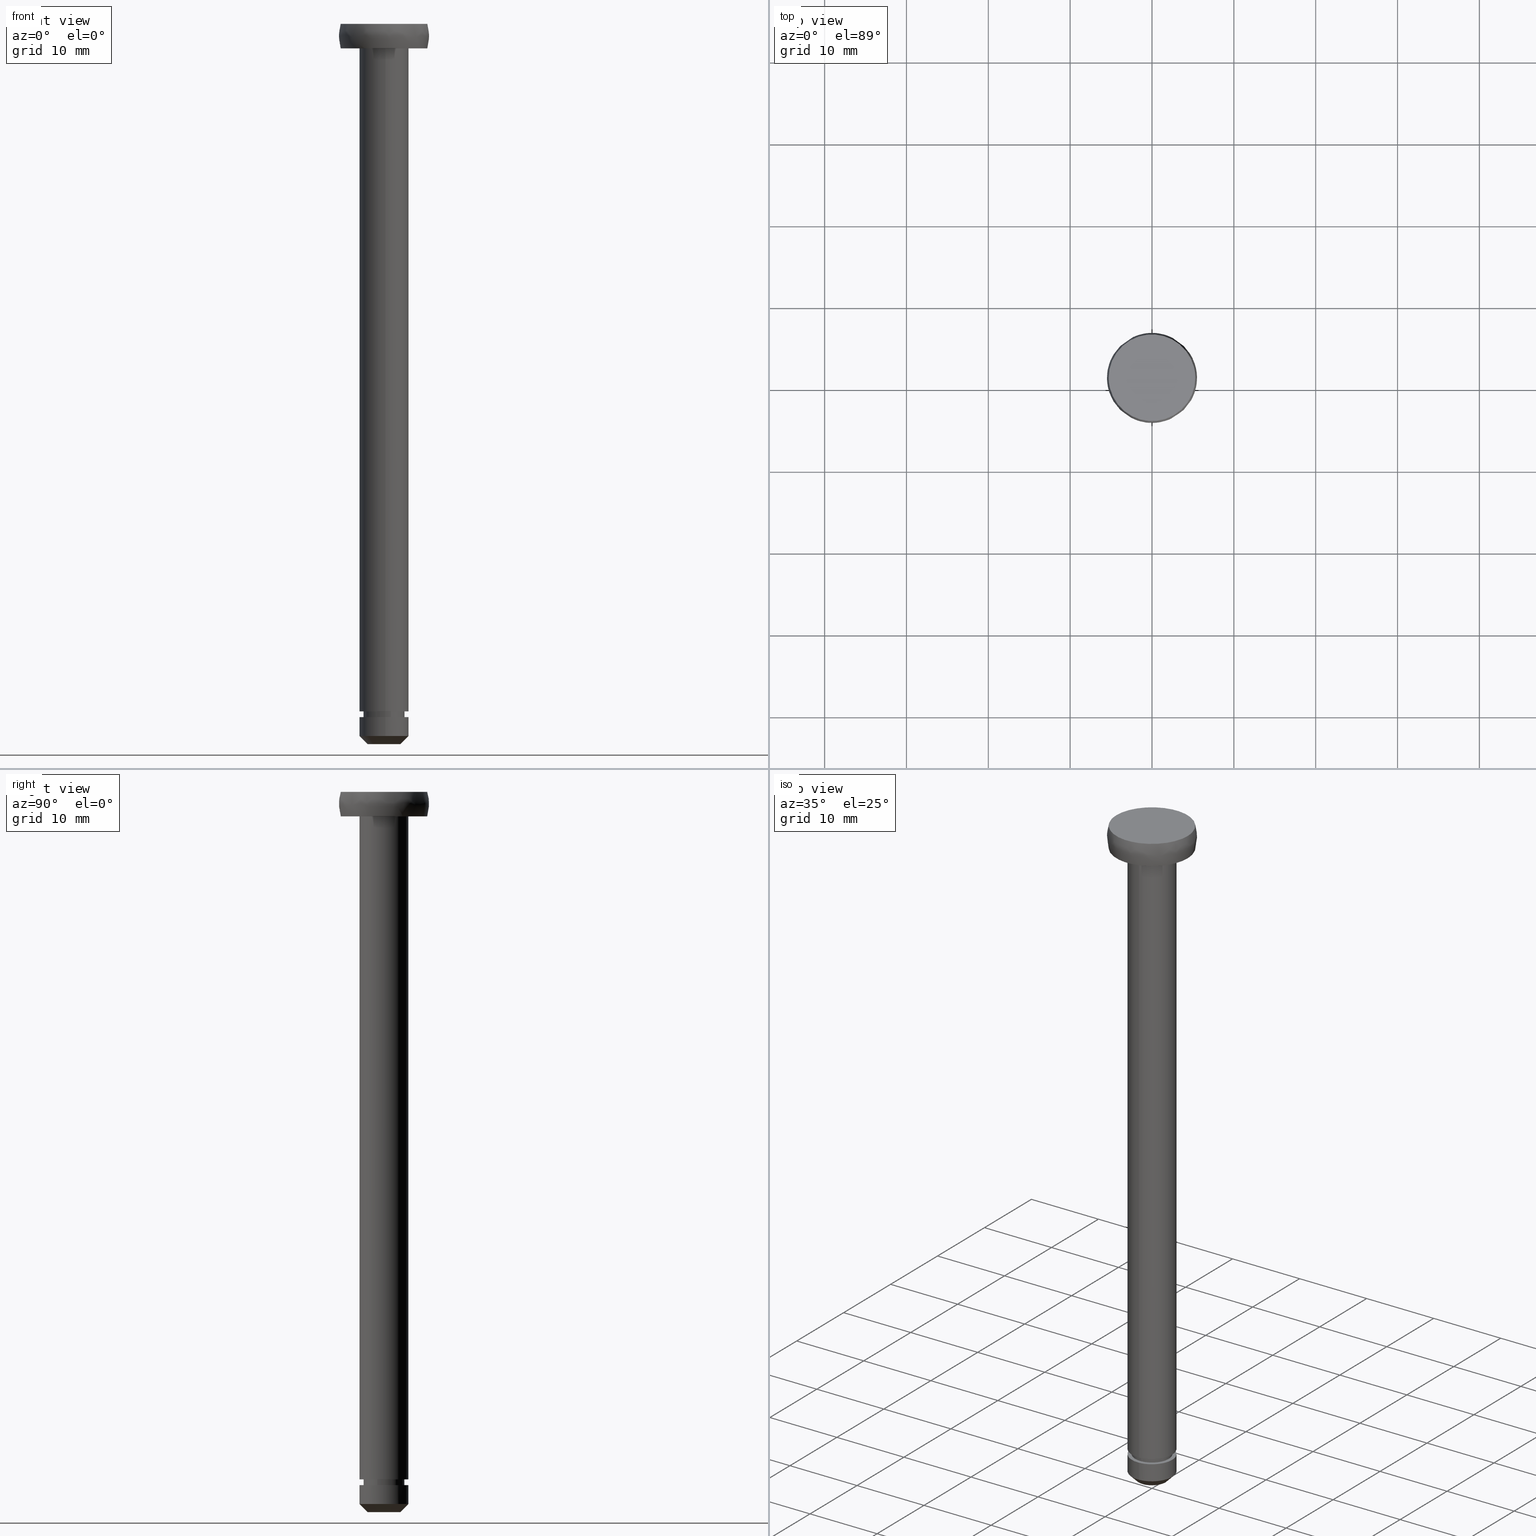
[diagram: canonical four-view strip — front | top / right | iso, engineering-drawing reading convention]
A machine part, canonical four-view strip (front | top / right | iso — engineering-drawing reading convention). The complete STEP part file that produces these views, byte-faithful:
ISO-10303-21;
HEADER;
/****************************************************************
 * Generated by software with PDE/Lib inside                    *
 * PDElib Version 4.4.1-0003, patched  Thursday August 19 11:58 *
 * International Technegroup Inc. (www.iti-oh.com)              *
 ****************************************************************/
FILE_DESCRIPTION((''),'2;1');
FILE_NAME('','2005-04-20T08:51:50',(''),(''),'','CADfix','');
FILE_SCHEMA(('AUTOMOTIVE_DESIGN'));
ENDSEC;
DATA;
#5=APPLICATION_CONTEXT('automotive design');
#6=APPLICATION_PROTOCOL_DEFINITION('Draft International Standard','automotive_design',1998,#5);
#7=PRODUCT_CONTEXT('None',#5,'mechanical');
#8=PRODUCT('shaft','','None',(#7));
#9=PRODUCT_RELATED_PRODUCT_CATEGORY('part','description',(#8));
#10=PRODUCT_DEFINITION_FORMATION('None','None',#8);
#11=PRODUCT_DEFINITION_CONTEXT('part definition',#5,'design');
#12=PRODUCT_DEFINITION('None','None',#10,#11);
#18=(NAMED_UNIT(*)PLANE_ANGLE_UNIT()SI_UNIT($,.RADIAN.));
#19=DIMENSIONAL_EXPONENTS(0.0,0.0,0.0,0.0,0.0,0.0,0.0);
#20=PLANE_ANGLE_MEASURE_WITH_UNIT(PLANE_ANGLE_MEASURE(0.017453292500000),#18);
#24=(CONVERSION_BASED_UNIT('DEGREE',#20)NAMED_UNIT(#19)PLANE_ANGLE_UNIT());
#28=(NAMED_UNIT(*)SI_UNIT($,.STERADIAN.)SOLID_ANGLE_UNIT());
#32=(LENGTH_UNIT()NAMED_UNIT(*)SI_UNIT(.MILLI.,.METRE.));
#34=UNCERTAINTY_MEASURE_WITH_UNIT(LENGTH_MEASURE(0.001000000000000),#32,'DISTANCE_ACCURACY_VALUE','');
#36=(GEOMETRIC_REPRESENTATION_CONTEXT(3)GLOBAL_UNCERTAINTY_ASSIGNED_CONTEXT((#34))GLOBAL_UNIT_ASSIGNED_CONTEXT((#24,#28,#32))REPRESENTATION_CONTEXT('None','None'));
#37=AXIS2_PLACEMENT_3D('',#38,#39,#40);
#38=CARTESIAN_POINT('',(0.0,0.0,0.0));
#39=DIRECTION('',(0.0,0.0,1.0));
#40=DIRECTION('',(1.0,0.0,0.0));
#41=ADVANCED_BREP_SHAPE_REPRESENTATION('',(#37,#952),#36);
#42=PRODUCT_DEFINITION_SHAPE('','',#12);
#43=SHAPE_DEFINITION_REPRESENTATION(#42,#41);
#44=CARTESIAN_POINT('',(-0.295085586641896,2.482523815909166,4.017499925000000));
#45=CARTESIAN_POINT('',(-0.224036821594944,2.490969038621514,4.017499925000000));
#46=CARTESIAN_POINT('',(-0.152621348837143,2.495336996054667,4.017499925000000));
#47=CARTESIAN_POINT('',(2.342715647217524,2.647958344891809,4.017499925000001));
#48=CARTESIAN_POINT('',(2.495336996054667,0.152621348837143,4.017499925000000));
#49=CARTESIAN_POINT('',(2.647958344891809,-2.342715647217524,4.017499925000001));
#50=CARTESIAN_POINT('',(0.152621348837143,-2.495336996054667,4.017499925000000));
#51=CARTESIAN_POINT('',(-0.295085586641896,2.482523815909166,3.282065576875000));
#52=CARTESIAN_POINT('',(-0.224036821594944,2.490969038621514,3.282065576875000));
#53=CARTESIAN_POINT('',(-0.152621348837143,2.495336996054667,3.282065576875000));
#54=CARTESIAN_POINT('',(2.342715647217524,2.647958344891809,3.282065576874999));
#55=CARTESIAN_POINT('',(2.495336996054667,0.152621348837143,3.282065576875000));
#56=CARTESIAN_POINT('',(2.647958344891809,-2.342715647217524,3.282065576874999));
#57=CARTESIAN_POINT('',(0.152621348837143,-2.495336996054667,3.282065576875000));
#65=(BOUNDED_SURFACE()B_SPLINE_SURFACE(2,1,((#44,#51),(#45,#52),(#46,#53),(#47,#54),(#48,#55),(#49,#56),(#50,#57)),.UNSPECIFIED.,.F.,.F.,.U.)B_SPLINE_SURFACE_WITH_KNOTS((3,2,2,3),(2,2),(0.0,0.165685424949238,4.307821048680188,8.449956672411137),(0.0,1.0),.UNSPECIFIED.)GEOMETRIC_REPRESENTATION_ITEM()RATIONAL_B_SPLINE_SURFACE(((0.977505800795127,0.977505800795127),(0.988284271247462,0.988284271247462),(1.0,1.0),(0.707106781186548,0.707106781186548),(1.0,1.0),(0.707106781186548,0.707106781186548),(1.0,1.0)))REPRESENTATION_ITEM('')SURFACE());
#66=CARTESIAN_POINT('',(-0.295085586881398,2.482523815880697,4.0));
#67=VERTEX_POINT('',#66);
#68=CARTESIAN_POINT('',(2.500000000000000,0.0,4.0));
#69=VERTEX_POINT('',#68);
#70=CARTESIAN_POINT('',(-0.295085586881398,2.482523815880696,4.0));
#71=CARTESIAN_POINT('',(-0.148060299371810,2.500000000000000,4.0));
#72=CARTESIAN_POINT('',(0.0,2.500000000000000,4.0));
#73=CARTESIAN_POINT('',(2.500000000000000,2.500000000000000,4.000000000000000));
#74=CARTESIAN_POINT('',(2.500000000000000,0.0,4.0));
#82=(BOUNDED_CURVE()B_SPLINE_CURVE(2,(#70,#71,#72,#73,#74),.UNSPECIFIED.,.F.,.U.)B_SPLINE_CURVE_WITH_KNOTS((3,2,3),(0.229562473483035,0.250000000000000,0.500000000000000),.UNSPECIFIED.)CURVE()GEOMETRIC_REPRESENTATION_ITEM()RATIONAL_B_SPLINE_CURVE((0.956026754123970,0.976055948295443,1.0,0.707106781186548,1.0))REPRESENTATION_ITEM(''));
#83=EDGE_CURVE('',#67,#69,#82,.T.);
#84=ORIENTED_EDGE('',*,*,#83,.T.);
#85=CARTESIAN_POINT('',(0.152621348861238,-2.495336996053194,4.0));
#86=VERTEX_POINT('',#85);
#87=CARTESIAN_POINT('',(2.500000000000000,0.0,4.0));
#88=CARTESIAN_POINT('',(2.500000000000000,-2.351765167218741,4.0));
#89=CARTESIAN_POINT('',(0.152621348861238,-2.495336996053194,4.000000000000001));
#97=(BOUNDED_CURVE()B_SPLINE_CURVE(2,(#87,#88,#89),.UNSPECIFIED.,.F.,.U.)B_SPLINE_CURVE_WITH_KNOTS((3,3),(0.500000000000000,0.739332962238636),.UNSPECIFIED.)CURVE()GEOMETRIC_REPRESENTATION_ITEM()RATIONAL_B_SPLINE_CURVE((1.0,0.719603993287069,0.976072041666061))REPRESENTATION_ITEM(''));
#98=EDGE_CURVE('',#69,#86,#97,.T.);
#99=ORIENTED_EDGE('',*,*,#98,.T.);
#100=CARTESIAN_POINT('',(0.152621348861239,-2.495336996053193,3.300003000000000));
#101=VERTEX_POINT('',#100);
#102=CARTESIAN_POINT('',(0.152621348861238,-2.495336996053194,4.0));
#103=CARTESIAN_POINT('',(0.152621348861239,-2.495336996053193,3.300003000000000));
#104=QUASI_UNIFORM_CURVE('',1,(#102,#103),.UNSPECIFIED.,.F.,.U.);
#105=EDGE_CURVE('',#86,#101,#104,.T.);
#106=ORIENTED_EDGE('',*,*,#105,.T.);
#107=CARTESIAN_POINT('',(2.500000000000000,0.0,3.300003000000000));
#108=VERTEX_POINT('',#107);
#109=CARTESIAN_POINT('',(2.500000000000000,0.0,3.300003000000000));
#110=CARTESIAN_POINT('',(2.500000000000000,-2.351765167218741,3.300003000000001));
#111=CARTESIAN_POINT('',(0.152621348861239,-2.495336996053194,3.300003000000000));
#119=(BOUNDED_CURVE()B_SPLINE_CURVE(2,(#109,#110,#111),.UNSPECIFIED.,.F.,.U.)B_SPLINE_CURVE_WITH_KNOTS((3,3),(0.500000000000000,0.739332962238636),.UNSPECIFIED.)CURVE()GEOMETRIC_REPRESENTATION_ITEM()RATIONAL_B_SPLINE_CURVE((1.0,0.719603993287069,0.976072041666061))REPRESENTATION_ITEM(''));
#120=EDGE_CURVE('',#108,#101,#119,.T.);
#121=ORIENTED_EDGE('',*,*,#120,.F.);
#122=CARTESIAN_POINT('',(-0.295085586881398,2.482523815880697,3.300003000000000));
#123=VERTEX_POINT('',#122);
#124=CARTESIAN_POINT('',(-0.295085586881398,2.482523815880696,3.300003000000000));
#125=CARTESIAN_POINT('',(-0.148060299371810,2.500000000000000,3.300003000000000));
#126=CARTESIAN_POINT('',(0.0,2.500000000000000,3.300003000000000));
#127=CARTESIAN_POINT('',(2.500000000000000,2.500000000000000,3.300003000000001));
#128=CARTESIAN_POINT('',(2.500000000000000,0.0,3.300003000000000));
#136=(BOUNDED_CURVE()B_SPLINE_CURVE(2,(#124,#125,#126,#127,#128),.UNSPECIFIED.,.F.,.U.)B_SPLINE_CURVE_WITH_KNOTS((3,2,3),(0.229562473483035,0.250000000000000,0.500000000000000),.UNSPECIFIED.)CURVE()GEOMETRIC_REPRESENTATION_ITEM()RATIONAL_B_SPLINE_CURVE((0.956026754123970,0.976055948295443,1.0,0.707106781186548,1.0))REPRESENTATION_ITEM(''));
#137=EDGE_CURVE('',#123,#108,#136,.T.);
#138=ORIENTED_EDGE('',*,*,#137,.F.);
#139=CARTESIAN_POINT('',(-0.295085586881398,2.482523815880697,4.0));
#140=CARTESIAN_POINT('',(-0.295085586881398,2.482523815880697,3.300003000000000));
#141=QUASI_UNIFORM_CURVE('',1,(#139,#140),.UNSPECIFIED.,.F.,.U.);
#142=EDGE_CURVE('',#67,#123,#141,.T.);
#143=ORIENTED_EDGE('',*,*,#142,.F.);
#144=EDGE_LOOP('',(#84,#99,#106,#121,#138,#143));
#145=FACE_OUTER_BOUND('',#144,.T.);
#146=ADVANCED_FACE('',(#145),#65,.T.);
#147=CARTESIAN_POINT('',(0.152621348837143,-2.495336996054667,4.017499925000000));
#148=CARTESIAN_POINT('',(-2.342715647217524,-2.647958344891809,4.017499925000001));
#149=CARTESIAN_POINT('',(-2.495336996054667,-0.152621348837143,4.017499925000000));
#150=CARTESIAN_POINT('',(-2.639465491831319,2.203858727098751,4.017499925000000));
#151=CARTESIAN_POINT('',(-0.295085586641896,2.482523815909166,4.017499925000000));
#152=CARTESIAN_POINT('',(0.152621348837143,-2.495336996054667,3.282065576875000));
#153=CARTESIAN_POINT('',(-2.342715647217524,-2.647958344891809,3.282065576874999));
#154=CARTESIAN_POINT('',(-2.495336996054667,-0.152621348837143,3.282065576875000));
#155=CARTESIAN_POINT('',(-2.639465491831319,2.203858727098751,3.282065576874999));
#156=CARTESIAN_POINT('',(-0.295085586641896,2.482523815909166,3.282065576875000));
#164=(BOUNDED_SURFACE()B_SPLINE_SURFACE(2,1,((#147,#152),(#148,#153),(#149,#154),(#150,#155),(#151,#156)),.UNSPECIFIED.,.F.,.F.,.U.)B_SPLINE_SURFACE_WITH_KNOTS((3,2,3),(2,2),(0.0,4.142135623730949,8.118585822512660),(0.0,1.0),.UNSPECIFIED.)GEOMETRIC_REPRESENTATION_ITEM()RATIONAL_B_SPLINE_SURFACE(((1.0,1.0),(0.707106781186548,0.707106781186548),(1.0,1.0),(0.718822509939086,0.718822509939086),(0.977505800795127,0.977505800795127)))REPRESENTATION_ITEM('')SURFACE());
#165=CARTESIAN_POINT('',(-2.500000000000000,0.0,4.0));
#166=VERTEX_POINT('',#165);
#167=CARTESIAN_POINT('',(-2.500000000000000,0.0,4.0));
#168=CARTESIAN_POINT('',(-2.500000000000000,2.220436314446967,4.000000000000001));
#169=CARTESIAN_POINT('',(-0.295085586881398,2.482523815880697,4.0));
#177=(BOUNDED_CURVE()B_SPLINE_CURVE(2,(#167,#168,#169),.UNSPECIFIED.,.F.,.U.)B_SPLINE_CURVE_WITH_KNOTS((3,3),(0.0,0.229562473483035),.UNSPECIFIED.)CURVE()GEOMETRIC_REPRESENTATION_ITEM()RATIONAL_B_SPLINE_CURVE((1.0,0.731050832891104,0.956026754123970))REPRESENTATION_ITEM(''));
#178=EDGE_CURVE('',#166,#67,#177,.T.);
#179=ORIENTED_EDGE('',*,*,#178,.T.);
#180=ORIENTED_EDGE('',*,*,#142,.T.);
#181=CARTESIAN_POINT('',(-2.500000000000000,0.0,3.300003000000000));
#182=VERTEX_POINT('',#181);
#183=CARTESIAN_POINT('',(-2.500000000000000,0.0,3.300003000000000));
#184=CARTESIAN_POINT('',(-2.500000000000000,2.220436314446967,3.300003000000001));
#185=CARTESIAN_POINT('',(-0.295085586881398,2.482523815880697,3.300003000000000));
#193=(BOUNDED_CURVE()B_SPLINE_CURVE(2,(#183,#184,#185),.UNSPECIFIED.,.F.,.U.)B_SPLINE_CURVE_WITH_KNOTS((3,3),(0.0,0.229562473483035),.UNSPECIFIED.)CURVE()GEOMETRIC_REPRESENTATION_ITEM()RATIONAL_B_SPLINE_CURVE((1.0,0.731050832891104,0.956026754123970))REPRESENTATION_ITEM(''));
#194=EDGE_CURVE('',#182,#123,#193,.T.);
#195=ORIENTED_EDGE('',*,*,#194,.F.);
#196=CARTESIAN_POINT('',(0.152621348861239,-2.495336996053193,3.300003000000000));
#197=CARTESIAN_POINT('',(0.076381908270636,-2.500000000000000,3.300003000000000));
#198=CARTESIAN_POINT('',(0.0,-2.500000000000000,3.300003000000000));
#199=CARTESIAN_POINT('',(-2.500000000000000,-2.500000000000000,3.300003000000001));
#200=CARTESIAN_POINT('',(-2.500000000000000,0.0,3.300003000000000));
#208=(BOUNDED_CURVE()B_SPLINE_CURVE(2,(#196,#197,#198,#199,#200),.UNSPECIFIED.,.F.,.U.)B_SPLINE_CURVE_WITH_KNOTS((3,2,3),(0.739332962238636,0.750000000000000,1.0),.UNSPECIFIED.)CURVE()GEOMETRIC_REPRESENTATION_ITEM()RATIONAL_B_SPLINE_CURVE((0.976072041666060,0.987502787899478,1.0,0.707106781186548,1.0))REPRESENTATION_ITEM(''));
#209=EDGE_CURVE('',#101,#182,#208,.T.);
#210=ORIENTED_EDGE('',*,*,#209,.F.);
#211=ORIENTED_EDGE('',*,*,#105,.F.);
#212=CARTESIAN_POINT('',(0.152621348861238,-2.495336996053194,4.0));
#213=CARTESIAN_POINT('',(0.076381908270635,-2.500000000000001,4.0));
#214=CARTESIAN_POINT('',(0.0,-2.500000000000000,4.0));
#215=CARTESIAN_POINT('',(-2.500000000000000,-2.500000000000000,4.000000000000000));
#216=CARTESIAN_POINT('',(-2.500000000000000,0.0,4.0));
#224=(BOUNDED_CURVE()B_SPLINE_CURVE(2,(#212,#213,#214,#215,#216),.UNSPECIFIED.,.F.,.U.)B_SPLINE_CURVE_WITH_KNOTS((3,2,3),(0.739332962238636,0.750000000000000,1.0),.UNSPECIFIED.)CURVE()GEOMETRIC_REPRESENTATION_ITEM()RATIONAL_B_SPLINE_CURVE((0.976072041666060,0.987502787899478,1.0,0.707106781186548,1.0))REPRESENTATION_ITEM(''));
#225=EDGE_CURVE('',#86,#166,#224,.T.);
#226=ORIENTED_EDGE('',*,*,#225,.T.);
#227=EDGE_LOOP('',(#179,#180,#195,#210,#211,#226));
#228=FACE_OUTER_BOUND('',#227,.T.);
#229=ADVANCED_FACE('',(#228),#164,.T.);
#230=CARTESIAN_POINT('',(-0.354102703970275,2.979028579091000,87.025008200000045));
#231=CARTESIAN_POINT('',(-0.268844185913933,2.989162846345817,87.025008200000030));
#232=CARTESIAN_POINT('',(-0.183145618604571,2.994404395265600,87.025008200000030));
#233=CARTESIAN_POINT('',(2.811258776661029,3.177550013870171,87.025008200000030));
#234=CARTESIAN_POINT('',(2.994404395265600,0.183145618604571,87.025008200000030));
#235=CARTESIAN_POINT('',(3.177550013870171,-2.811258776661029,87.025008200000030));
#236=CARTESIAN_POINT('',(0.183145618604571,-2.994404395265600,87.025008200000030));
#237=CARTESIAN_POINT('',(-0.354102703970275,2.979028579091000,1.924374795000006));
#238=CARTESIAN_POINT('',(-0.268844185913933,2.989162846345817,1.924374795000006));
#239=CARTESIAN_POINT('',(-0.183145618604571,2.994404395265600,1.924374795000006));
#240=CARTESIAN_POINT('',(2.811258776661029,3.177550013870171,1.924374795000005));
#241=CARTESIAN_POINT('',(2.994404395265600,0.183145618604571,1.924374795000006));
#242=CARTESIAN_POINT('',(3.177550013870171,-2.811258776661029,1.924374795000005));
#243=CARTESIAN_POINT('',(0.183145618604571,-2.994404395265600,1.924374795000006));
#251=(BOUNDED_SURFACE()B_SPLINE_SURFACE(2,1,((#230,#237),(#231,#238),(#232,#239),(#233,#240),(#234,#241),(#235,#242),(#236,#243)),.UNSPECIFIED.,.F.,.F.,.U.)B_SPLINE_SURFACE_WITH_KNOTS((3,2,2,3),(2,2),(0.0,0.198822509939086,5.169385258416225,10.139948006893370),(0.0,85.100633405000039),.UNSPECIFIED.)GEOMETRIC_REPRESENTATION_ITEM()RATIONAL_B_SPLINE_SURFACE(((0.977505800795127,0.977505800795127),(0.988284271247462,0.988284271247462),(1.0,1.0),(0.707106781186548,0.707106781186548),(1.0,1.0),(0.707106781186548,0.707106781186548),(1.0,1.0)))REPRESENTATION_ITEM('')SURFACE());
#252=CARTESIAN_POINT('',(-0.354102703992168,2.979028579088397,3.999999999999999));
#253=VERTEX_POINT('',#252);
#254=CARTESIAN_POINT('',(3.0,0.0,4.0));
#255=VERTEX_POINT('',#254);
#256=CARTESIAN_POINT('',(-0.354102703992168,2.979028579088397,3.999999999999999));
#257=CARTESIAN_POINT('',(-0.177672358977854,3.0,4.0));
#258=CARTESIAN_POINT('',(0.0,3.0,4.0));
#259=CARTESIAN_POINT('',(3.0,3.0,4.000000000000000));
#260=CARTESIAN_POINT('',(3.0,0.0,4.0));
#268=(BOUNDED_CURVE()B_SPLINE_CURVE(2,(#256,#257,#258,#259,#260),.UNSPECIFIED.,.F.,.U.)B_SPLINE_CURVE_WITH_KNOTS((3,2,3),(0.229562473513160,0.250000000000000,0.500000000000000),.UNSPECIFIED.)CURVE()GEOMETRIC_REPRESENTATION_ITEM()RATIONAL_B_SPLINE_CURVE((0.956026754183017,0.976055948330737,1.0,0.707106781186548,1.0))REPRESENTATION_ITEM(''));
#269=EDGE_CURVE('',#253,#255,#268,.T.);
#270=ORIENTED_EDGE('',*,*,#269,.F.);
#271=CARTESIAN_POINT('',(-0.354102703992168,2.979028579088397,85.000008000000008));
#272=VERTEX_POINT('',#271);
#273=CARTESIAN_POINT('',(-0.354102703992168,2.979028579088397,85.000008000000008));
#274=CARTESIAN_POINT('',(-0.354102703992168,2.979028579088397,3.999999999999999));
#275=QUASI_UNIFORM_CURVE('',1,(#273,#274),.UNSPECIFIED.,.F.,.U.);
#276=EDGE_CURVE('',#272,#253,#275,.T.);
#277=ORIENTED_EDGE('',*,*,#276,.F.);
#278=CARTESIAN_POINT('',(3.0,0.0,85.000008000000008));
#279=VERTEX_POINT('',#278);
#280=CARTESIAN_POINT('',(-0.354102703992168,2.979028579088397,85.000008000000008));
#281=CARTESIAN_POINT('',(-0.177672358977854,3.0,85.000008000000008));
#282=CARTESIAN_POINT('',(0.0,3.0,85.000008000000008));
#283=CARTESIAN_POINT('',(3.0,3.0,85.000008000000008));
#284=CARTESIAN_POINT('',(3.0,0.0,85.000008000000008));
#292=(BOUNDED_CURVE()B_SPLINE_CURVE(2,(#280,#281,#282,#283,#284),.UNSPECIFIED.,.F.,.U.)B_SPLINE_CURVE_WITH_KNOTS((3,2,3),(0.229562473513160,0.250000000000000,0.500000000000000),.UNSPECIFIED.)CURVE()GEOMETRIC_REPRESENTATION_ITEM()RATIONAL_B_SPLINE_CURVE((0.956026754183017,0.976055948330737,1.0,0.707106781186548,1.0))REPRESENTATION_ITEM(''));
#293=EDGE_CURVE('',#272,#279,#292,.T.);
#294=ORIENTED_EDGE('',*,*,#293,.T.);
#295=CARTESIAN_POINT('',(0.183145618696712,-2.994404395259965,85.000008000000008));
#296=VERTEX_POINT('',#295);
#297=CARTESIAN_POINT('',(3.0,0.0,85.000008000000008));
#298=CARTESIAN_POINT('',(3.000000000000001,-2.822118200543074,85.000008000000008));
#299=CARTESIAN_POINT('',(0.183145618696712,-2.994404395259965,85.000008000000008));
#307=(BOUNDED_CURVE()B_SPLINE_CURVE(2,(#297,#298,#299),.UNSPECIFIED.,.F.,.U.)B_SPLINE_CURVE_WITH_KNOTS((3,3),(0.500000000000000,0.739332962231349),.UNSPECIFIED.)CURVE()GEOMETRIC_REPRESENTATION_ITEM()RATIONAL_B_SPLINE_CURVE((1.0,0.719603993295607,0.976072041650442))REPRESENTATION_ITEM(''));
#308=EDGE_CURVE('',#279,#296,#307,.T.);
#309=ORIENTED_EDGE('',*,*,#308,.T.);
#310=CARTESIAN_POINT('',(0.183145618696712,-2.994404395259965,3.999999999999999));
#311=VERTEX_POINT('',#310);
#312=CARTESIAN_POINT('',(0.183145618696712,-2.994404395259965,85.000008000000008));
#313=CARTESIAN_POINT('',(0.183145618696712,-2.994404395259965,3.999999999999999));
#314=QUASI_UNIFORM_CURVE('',1,(#312,#313),.UNSPECIFIED.,.F.,.U.);
#315=EDGE_CURVE('',#296,#311,#314,.T.);
#316=ORIENTED_EDGE('',*,*,#315,.T.);
#317=CARTESIAN_POINT('',(3.0,0.0,4.0));
#318=CARTESIAN_POINT('',(3.000000000000001,-2.822118200543074,4.000000000000000));
#319=CARTESIAN_POINT('',(0.183145618696712,-2.994404395259965,3.999999999999999));
#327=(BOUNDED_CURVE()B_SPLINE_CURVE(2,(#317,#318,#319),.UNSPECIFIED.,.F.,.U.)B_SPLINE_CURVE_WITH_KNOTS((3,3),(0.500000000000000,0.739332962231349),.UNSPECIFIED.)CURVE()GEOMETRIC_REPRESENTATION_ITEM()RATIONAL_B_SPLINE_CURVE((1.0,0.719603993295607,0.976072041650442))REPRESENTATION_ITEM(''));
#328=EDGE_CURVE('',#255,#311,#327,.T.);
#329=ORIENTED_EDGE('',*,*,#328,.F.);
#330=EDGE_LOOP('',(#270,#277,#294,#309,#316,#329));
#331=FACE_OUTER_BOUND('',#330,.T.);
#332=ADVANCED_FACE('',(#331),#251,.T.);
#333=CARTESIAN_POINT('',(0.183145618604571,-2.994404395265600,87.025008200000030));
#334=CARTESIAN_POINT('',(-2.811258776661029,-3.177550013870171,87.025008200000030));
#335=CARTESIAN_POINT('',(-2.994404395265600,-0.183145618604571,87.025008200000030));
#336=CARTESIAN_POINT('',(-3.167358590197582,2.644630472518504,87.025008200000045));
#337=CARTESIAN_POINT('',(-0.354102703970275,2.979028579091000,87.025008200000045));
#338=CARTESIAN_POINT('',(0.183145618604571,-2.994404395265600,1.924374795000006));
#339=CARTESIAN_POINT('',(-2.811258776661029,-3.177550013870171,1.924374795000005));
#340=CARTESIAN_POINT('',(-2.994404395265600,-0.183145618604571,1.924374795000006));
#341=CARTESIAN_POINT('',(-3.167358590197582,2.644630472518504,1.924374795000006));
#342=CARTESIAN_POINT('',(-0.354102703970275,2.979028579091000,1.924374795000006));
#350=(BOUNDED_SURFACE()B_SPLINE_SURFACE(2,1,((#333,#338),(#334,#339),(#335,#340),(#336,#341),(#337,#342)),.UNSPECIFIED.,.F.,.F.,.U.)B_SPLINE_SURFACE_WITH_KNOTS((3,2,3),(2,2),(0.0,4.970562748477139,9.742302987015194),(0.0,85.100633405000039),.UNSPECIFIED.)GEOMETRIC_REPRESENTATION_ITEM()RATIONAL_B_SPLINE_SURFACE(((1.0,1.0),(0.707106781186548,0.707106781186548),(1.0,1.0),(0.718822509939086,0.718822509939086),(0.977505800795127,0.977505800795127)))REPRESENTATION_ITEM('')SURFACE());
#351=CARTESIAN_POINT('',(-3.0,0.0,4.0));
#352=VERTEX_POINT('',#351);
#353=CARTESIAN_POINT('',(-3.0,0.0,4.0));
#354=CARTESIAN_POINT('',(-3.000000000000000,2.664523577814664,4.000000000000001));
#355=CARTESIAN_POINT('',(-0.354102703992168,2.979028579088397,3.999999999999999));
#363=(BOUNDED_CURVE()B_SPLINE_CURVE(2,(#353,#354,#355),.UNSPECIFIED.,.F.,.U.)B_SPLINE_CURVE_WITH_KNOTS((3,3),(0.0,0.229562473513160),.UNSPECIFIED.)CURVE()GEOMETRIC_REPRESENTATION_ITEM()RATIONAL_B_SPLINE_CURVE((1.0,0.731050832855810,0.956026754183017))REPRESENTATION_ITEM(''));
#364=EDGE_CURVE('',#352,#253,#363,.T.);
#365=ORIENTED_EDGE('',*,*,#364,.F.);
#366=CARTESIAN_POINT('',(0.183145618696712,-2.994404395259965,4.000000000000000));
#367=CARTESIAN_POINT('',(0.091658289988166,-3.0,4.0));
#368=CARTESIAN_POINT('',(0.0,-3.0,4.0));
#369=CARTESIAN_POINT('',(-3.0,-3.0,4.000000000000000));
#370=CARTESIAN_POINT('',(-3.0,0.0,4.0));
#378=(BOUNDED_CURVE()B_SPLINE_CURVE(2,(#366,#367,#368,#369,#370),.UNSPECIFIED.,.F.,.U.)B_SPLINE_CURVE_WITH_KNOTS((3,2,3),(0.739332962231349,0.750000000000000,1.0),.UNSPECIFIED.)CURVE()GEOMETRIC_REPRESENTATION_ITEM()RATIONAL_B_SPLINE_CURVE((0.976072041650443,0.987502787890941,1.0,0.707106781186548,1.0))REPRESENTATION_ITEM(''));
#379=EDGE_CURVE('',#311,#352,#378,.T.);
#380=ORIENTED_EDGE('',*,*,#379,.F.);
#381=ORIENTED_EDGE('',*,*,#315,.F.);
#382=CARTESIAN_POINT('',(-3.0,0.0,85.000008000000008));
#383=VERTEX_POINT('',#382);
#384=CARTESIAN_POINT('',(0.183145618696712,-2.994404395259965,85.000008000000008));
#385=CARTESIAN_POINT('',(0.091658289988166,-3.0,85.000008000000008));
#386=CARTESIAN_POINT('',(0.0,-3.0,85.000008000000008));
#387=CARTESIAN_POINT('',(-3.0,-3.0,85.000008000000008));
#388=CARTESIAN_POINT('',(-3.0,0.0,85.000008000000008));
#396=(BOUNDED_CURVE()B_SPLINE_CURVE(2,(#384,#385,#386,#387,#388),.UNSPECIFIED.,.F.,.U.)B_SPLINE_CURVE_WITH_KNOTS((3,2,3),(0.739332962231349,0.750000000000000,1.0),.UNSPECIFIED.)CURVE()GEOMETRIC_REPRESENTATION_ITEM()RATIONAL_B_SPLINE_CURVE((0.976072041650443,0.987502787890941,1.0,0.707106781186548,1.0))REPRESENTATION_ITEM(''));
#397=EDGE_CURVE('',#296,#383,#396,.T.);
#398=ORIENTED_EDGE('',*,*,#397,.T.);
#399=CARTESIAN_POINT('',(-3.0,0.0,85.000008000000008));
#400=CARTESIAN_POINT('',(-3.000000000000000,2.664523577814664,85.000007999999994));
#401=CARTESIAN_POINT('',(-0.354102703992168,2.979028579088397,85.000008000000008));
#409=(BOUNDED_CURVE()B_SPLINE_CURVE(2,(#399,#400,#401),.UNSPECIFIED.,.F.,.U.)B_SPLINE_CURVE_WITH_KNOTS((3,3),(0.0,0.229562473513160),.UNSPECIFIED.)CURVE()GEOMETRIC_REPRESENTATION_ITEM()RATIONAL_B_SPLINE_CURVE((1.0,0.731050832855810,0.956026754183017))REPRESENTATION_ITEM(''));
#410=EDGE_CURVE('',#383,#272,#409,.T.);
#411=ORIENTED_EDGE('',*,*,#410,.T.);
#412=ORIENTED_EDGE('',*,*,#276,.T.);
#413=EDGE_LOOP('',(#365,#380,#381,#398,#411,#412));
#414=FACE_OUTER_BOUND('',#413,.T.);
#415=ADVANCED_FACE('',(#414),#350,.T.);
#416=CARTESIAN_POINT('',(1.665004096507187,1.062255317056252,-0.025000000000000));
#417=CARTESIAN_POINT('',(1.027209143203780,2.061950204839571,-0.025000000000000));
#418=CARTESIAN_POINT('',(-0.154956714062495,1.968911734122927,-0.025000000000000));
#419=CARTESIAN_POINT('',(-2.123868448185422,1.813955020060431,-0.025000000000000));
#420=CARTESIAN_POINT('',(-1.968911734122927,-0.154956714062495,-0.025000000000000));
#421=CARTESIAN_POINT('',(-1.813955020060431,-2.123868448185422,-0.025000000000000));
#422=CARTESIAN_POINT('',(0.154956714062495,-1.968911734122927,-0.025000000000000));
#423=CARTESIAN_POINT('',(2.550723047845347,1.627334806920670,1.025625000000000));
#424=CARTESIAN_POINT('',(1.573645399446046,3.158829411907712,1.025625000000000));
#425=CARTESIAN_POINT('',(-0.237387801511563,3.016298007876294,1.025625000000000));
#426=CARTESIAN_POINT('',(-3.253685809387856,2.778910206364731,1.025625000000000));
#427=CARTESIAN_POINT('',(-3.016298007876294,-0.237387801511563,1.025625000000000));
#428=CARTESIAN_POINT('',(-2.778910206364731,-3.253685809387856,1.025625000000000));
#429=CARTESIAN_POINT('',(0.237387801511563,-3.016298007876294,1.025625000000000));
#437=(BOUNDED_SURFACE()B_SPLINE_SURFACE(2,1,((#416,#423),(#417,#424),(#418,#425),(#419,#426),(#420,#427),(#421,#428),(#422,#429)),.UNSPECIFIED.,.F.,.F.,.U.)B_SPLINE_SURFACE_WITH_KNOTS((3,2,2,3),(2,2),(0.0,3.408853354261859,8.421872992882239,13.434892631502620),(0.0,1.0),.UNSPECIFIED.)GEOMETRIC_REPRESENTATION_ITEM()RATIONAL_B_SPLINE_SURFACE(((0.872532871172386,0.872532871172386),(0.800832611206852,0.800832611206852),(1.0,1.0),(0.707106781186548,0.707106781186548),(1.0,1.0),(0.707106781186548,0.707106781186548),(1.0,1.0)))REPRESENTATION_ITEM('')SURFACE());
#438=CARTESIAN_POINT('',(-0.354102703992168,2.979028579088397,1.000000000000000));
#439=VERTEX_POINT('',#438);
#440=CARTESIAN_POINT('',(2.529120146451898,1.613552380587868,1.000000000014941));
#441=VERTEX_POINT('',#440);
#442=CARTESIAN_POINT('',(-0.354102703992168,2.979028579088397,1.000000000000000));
#443=CARTESIAN_POINT('',(-0.177672358977854,3.0,1.0));
#444=CARTESIAN_POINT('',(0.0,3.0,1.0));
#445=CARTESIAN_POINT('',(1.644580967672012,3.000000000000000,1.0));
#446=CARTESIAN_POINT('',(2.529120146451898,1.613552380587869,1.000000000014941));
#454=(BOUNDED_CURVE()B_SPLINE_CURVE(2,(#442,#443,#444,#445,#446),.UNSPECIFIED.,.F.,.U.)B_SPLINE_CURVE_WITH_KNOTS((3,2,3),(0.229562473513160,0.250000000000000,0.407950112598444),.UNSPECIFIED.)CURVE()GEOMETRIC_REPRESENTATION_ITEM()RATIONAL_B_SPLINE_CURVE((0.956026754183017,0.976055948330737,1.0,0.814949932436378,0.863729296936946))REPRESENTATION_ITEM(''));
#455=EDGE_CURVE('',#439,#441,#454,.T.);
#456=ORIENTED_EDGE('',*,*,#455,.T.);
#457=CARTESIAN_POINT('',(1.686080097586848,1.075701587143925,1.560846E-011));
#458=VERTEX_POINT('',#457);
#459=CARTESIAN_POINT('',(1.686080097586848,1.075701587143925,1.560846E-011));
#460=CARTESIAN_POINT('',(2.529120146451898,1.613552380587868,1.000000000014941));
#461=QUASI_UNIFORM_CURVE('',1,(#459,#460),.UNSPECIFIED.,.F.,.U.);
#462=EDGE_CURVE('',#458,#441,#461,.T.);
#463=ORIENTED_EDGE('',*,*,#462,.F.);
#464=CARTESIAN_POINT('',(-2.0,0.0,0.0));
#465=VERTEX_POINT('',#464);
#466=CARTESIAN_POINT('',(-2.0,0.0,0.0));
#467=CARTESIAN_POINT('',(-2.000000000000000,2.000000000000000,0.0));
#468=CARTESIAN_POINT('',(0.0,2.0,0.0));
#469=CARTESIAN_POINT('',(1.096387311654372,2.000000000000000,0.0));
#470=CARTESIAN_POINT('',(1.686080097586848,1.075701587143925,1.560846E-011));
#478=(BOUNDED_CURVE()B_SPLINE_CURVE(2,(#466,#467,#468,#469,#470),.UNSPECIFIED.,.F.,.U.)B_SPLINE_CURVE_WITH_KNOTS((3,2,3),(0.0,0.250000000000000,0.407950112583537),.UNSPECIFIED.)CURVE()GEOMETRIC_REPRESENTATION_ITEM()RATIONAL_B_SPLINE_CURVE((1.0,0.707106781186548,1.0,0.814949932453843,0.863729296927739))REPRESENTATION_ITEM(''));
#479=EDGE_CURVE('',#465,#458,#478,.T.);
#480=ORIENTED_EDGE('',*,*,#479,.F.);
#481=CARTESIAN_POINT('',(0.156918192547570,-1.993834667522172,1.414123E-010));
#482=VERTEX_POINT('',#481);
#483=CARTESIAN_POINT('',(0.156918192547570,-1.993834667522172,1.414123E-010));
#484=CARTESIAN_POINT('',(0.078580215101139,-2.000000000000000,0.0));
#485=CARTESIAN_POINT('',(0.0,-2.0,0.0));
#486=CARTESIAN_POINT('',(-2.000000000000000,-2.000000000000000,0.0));
#487=CARTESIAN_POINT('',(-2.0,0.0,0.0));
#495=(BOUNDED_CURVE()B_SPLINE_CURVE(2,(#483,#484,#485,#486,#487),.UNSPECIFIED.,.F.,.U.)B_SPLINE_CURVE_WITH_KNOTS((3,2,3),(0.736331300446921,0.750000000000000,1.0),.UNSPECIFIED.)CURVE()GEOMETRIC_REPRESENTATION_ITEM()RATIONAL_B_SPLINE_CURVE((0.969723355783969,0.983986122363619,1.0,0.707106781186548,1.0))REPRESENTATION_ITEM(''));
#496=EDGE_CURVE('',#482,#465,#495,.T.);
#497=ORIENTED_EDGE('',*,*,#496,.F.);
#498=CARTESIAN_POINT('',(0.235377287306013,-2.990752001205871,1.000000000016077));
#499=VERTEX_POINT('',#498);
#500=CARTESIAN_POINT('',(0.156918192547570,-1.993834667522172,1.414123E-010));
#501=CARTESIAN_POINT('',(0.235377287306013,-2.990752001205871,1.000000000016077));
#502=QUASI_UNIFORM_CURVE('',1,(#500,#501),.UNSPECIFIED.,.F.,.U.);
#503=EDGE_CURVE('',#482,#499,#502,.T.);
#504=ORIENTED_EDGE('',*,*,#503,.T.);
#505=CARTESIAN_POINT('',(0.183145618696712,-2.994404395259965,1.000000000000000));
#506=VERTEX_POINT('',#505);
#507=CARTESIAN_POINT('',(0.235377287306013,-2.990752001205872,1.000000000016077));
#508=CARTESIAN_POINT('',(0.209277390087529,-2.992806107650916,1.0));
#509=CARTESIAN_POINT('',(0.183145618696712,-2.994404395259965,1.000000000000000));
#517=(BOUNDED_CURVE()B_SPLINE_CURVE(2,(#507,#508,#509),.UNSPECIFIED.,.F.,.U.)B_SPLINE_CURVE_WITH_KNOTS((3,3),(0.736331300618871,0.739332962231349),.UNSPECIFIED.)CURVE()GEOMETRIC_REPRESENTATION_ITEM()RATIONAL_B_SPLINE_CURVE((0.969723356142816,0.972855475539379,0.976072041650444))REPRESENTATION_ITEM(''));
#518=EDGE_CURVE('',#499,#506,#517,.T.);
#519=ORIENTED_EDGE('',*,*,#518,.T.);
#520=CARTESIAN_POINT('',(-3.0,0.0,1.0));
#521=VERTEX_POINT('',#520);
#522=CARTESIAN_POINT('',(0.183145618696712,-2.994404395259965,1.000000000000000));
#523=CARTESIAN_POINT('',(0.091658289988166,-3.0,1.0));
#524=CARTESIAN_POINT('',(0.0,-3.0,1.0));
#525=CARTESIAN_POINT('',(-3.0,-3.0,1.0));
#526=CARTESIAN_POINT('',(-3.0,0.0,1.0));
#534=(BOUNDED_CURVE()B_SPLINE_CURVE(2,(#522,#523,#524,#525,#526),.UNSPECIFIED.,.F.,.U.)B_SPLINE_CURVE_WITH_KNOTS((3,2,3),(0.739332962231349,0.750000000000000,1.0),.UNSPECIFIED.)CURVE()GEOMETRIC_REPRESENTATION_ITEM()RATIONAL_B_SPLINE_CURVE((0.976072041650443,0.987502787890941,1.0,0.707106781186548,1.0))REPRESENTATION_ITEM(''));
#535=EDGE_CURVE('',#506,#521,#534,.T.);
#536=ORIENTED_EDGE('',*,*,#535,.T.);
#537=CARTESIAN_POINT('',(-3.0,0.0,1.0));
#538=CARTESIAN_POINT('',(-3.000000000000000,2.664523577814664,1.0));
#539=CARTESIAN_POINT('',(-0.354102703992168,2.979028579088397,1.000000000000000));
#547=(BOUNDED_CURVE()B_SPLINE_CURVE(2,(#537,#538,#539),.UNSPECIFIED.,.F.,.U.)B_SPLINE_CURVE_WITH_KNOTS((3,3),(0.0,0.229562473513160),.UNSPECIFIED.)CURVE()GEOMETRIC_REPRESENTATION_ITEM()RATIONAL_B_SPLINE_CURVE((1.0,0.731050832855810,0.956026754183017))REPRESENTATION_ITEM(''));
#548=EDGE_CURVE('',#521,#439,#547,.T.);
#549=ORIENTED_EDGE('',*,*,#548,.T.);
#550=EDGE_LOOP('',(#456,#463,#480,#497,#504,#519,#536,#549));
#551=FACE_OUTER_BOUND('',#550,.T.);
#552=ADVANCED_FACE('',(#551),#437,.T.);
#553=CARTESIAN_POINT('',(0.154956714062495,-1.968911734122927,-0.025000000000000));
#554=CARTESIAN_POINT('',(2.123868448185422,-1.813955020060431,-0.025000000000000));
#555=CARTESIAN_POINT('',(1.968911734122927,0.154956714062495,-0.025000000000000));
#556=CARTESIAN_POINT('',(1.930222888055453,0.646545113202161,-0.025000000000000));
#557=CARTESIAN_POINT('',(1.665004096507187,1.062255317056252,-0.025000000000000));
#558=CARTESIAN_POINT('',(0.237387801511563,-3.016298007876294,1.025625000000000));
#559=CARTESIAN_POINT('',(3.253685809387856,-2.778910206364731,1.025625000000000));
#560=CARTESIAN_POINT('',(3.016298007876294,0.237387801511563,1.025625000000000));
#561=CARTESIAN_POINT('',(2.957028164897610,0.990482561079640,1.025625000000000));
#562=CARTESIAN_POINT('',(2.550723047845347,1.627334806920670,1.025625000000000));
#570=(BOUNDED_SURFACE()B_SPLINE_SURFACE(2,1,((#553,#558),(#554,#559),(#555,#560),(#556,#561),(#557,#562)),.UNSPECIFIED.,.F.,.F.,.U.)B_SPLINE_SURFACE_WITH_KNOTS((3,2,3),(2,2),(0.0,5.013019638620381,6.617185922978904),(0.0,1.0),.UNSPECIFIED.)GEOMETRIC_REPRESENTATION_ITEM()RATIONAL_B_SPLINE_SURFACE(((1.0,1.0),(0.707106781186548,0.707106781186548),(1.0,1.0),(0.906274169979695,0.906274169979695),(0.872532871172386,0.872532871172386)))REPRESENTATION_ITEM('')SURFACE());
#571=CARTESIAN_POINT('',(3.0,0.0,1.0));
#572=VERTEX_POINT('',#571);
#573=CARTESIAN_POINT('',(2.529120146451898,1.613552380587868,1.000000000014941));
#574=CARTESIAN_POINT('',(3.0,0.875484166448296,1.0));
#575=CARTESIAN_POINT('',(3.0,0.0,1.0));
#583=(BOUNDED_CURVE()B_SPLINE_CURVE(2,(#573,#574,#575),.UNSPECIFIED.,.F.,.U.)B_SPLINE_CURVE_WITH_KNOTS((3,3),(0.407950112598444,0.500000000000000),.UNSPECIFIED.)CURVE()GEOMETRIC_REPRESENTATION_ITEM()RATIONAL_B_SPLINE_CURVE((0.863729296936946,0.892156848750170,1.0))REPRESENTATION_ITEM(''));
#584=EDGE_CURVE('',#441,#572,#583,.T.);
#585=ORIENTED_EDGE('',*,*,#584,.T.);
#586=CARTESIAN_POINT('',(3.0,0.0,1.0));
#587=CARTESIAN_POINT('',(3.000000000000000,-2.773171474749122,1.0));
#588=CARTESIAN_POINT('',(0.235377287306013,-2.990752001205871,1.000000000016077));
#596=(BOUNDED_CURVE()B_SPLINE_CURVE(2,(#586,#587,#588),.UNSPECIFIED.,.F.,.U.)B_SPLINE_CURVE_WITH_KNOTS((3,3),(0.500000000000000,0.736331300618871),.UNSPECIFIED.)CURVE()GEOMETRIC_REPRESENTATION_ITEM()RATIONAL_B_SPLINE_CURVE((1.0,0.723120658621477,0.969723356142815))REPRESENTATION_ITEM(''));
#597=EDGE_CURVE('',#572,#499,#596,.T.);
#598=ORIENTED_EDGE('',*,*,#597,.T.);
#599=ORIENTED_EDGE('',*,*,#503,.F.);
#600=CARTESIAN_POINT('',(2.0,0.0,0.0));
#601=VERTEX_POINT('',#600);
#602=CARTESIAN_POINT('',(2.0,0.0,0.0));
#603=CARTESIAN_POINT('',(2.000000000000000,-1.848780981305908,0.0));
#604=CARTESIAN_POINT('',(0.156918192547570,-1.993834667522173,1.414123E-010));
#612=(BOUNDED_CURVE()B_SPLINE_CURVE(2,(#602,#603,#604),.UNSPECIFIED.,.F.,.U.)B_SPLINE_CURVE_WITH_KNOTS((3,3),(0.500000000000000,0.736331300446921),.UNSPECIFIED.)CURVE()GEOMETRIC_REPRESENTATION_ITEM()RATIONAL_B_SPLINE_CURVE((1.0,0.723120658822928,0.969723355783970))REPRESENTATION_ITEM(''));
#613=EDGE_CURVE('',#601,#482,#612,.T.);
#614=ORIENTED_EDGE('',*,*,#613,.F.);
#615=CARTESIAN_POINT('',(1.686080097586848,1.075701587143925,1.560846E-011));
#616=CARTESIAN_POINT('',(2.000000000000000,0.583656111071479,0.0));
#617=CARTESIAN_POINT('',(2.0,0.0,0.0));
#625=(BOUNDED_CURVE()B_SPLINE_CURVE(2,(#615,#616,#617),.UNSPECIFIED.,.F.,.U.)B_SPLINE_CURVE_WITH_KNOTS((3,3),(0.407950112583537,0.500000000000000),.UNSPECIFIED.)CURVE()GEOMETRIC_REPRESENTATION_ITEM()RATIONAL_B_SPLINE_CURVE((0.863729296927739,0.892156848732705,1.0))REPRESENTATION_ITEM(''));
#626=EDGE_CURVE('',#458,#601,#625,.T.);
#627=ORIENTED_EDGE('',*,*,#626,.F.);
#628=ORIENTED_EDGE('',*,*,#462,.T.);
#629=EDGE_LOOP('',(#585,#598,#599,#614,#627,#628));
#630=FACE_OUTER_BOUND('',#629,.T.);
#631=ADVANCED_FACE('',(#630),#570,.T.);
#632=CARTESIAN_POINT('',(-0.354102703970275,2.979028579091000,3.357503075000002));
#633=CARTESIAN_POINT('',(-0.268844185913933,2.989162846345817,3.357503075000000));
#634=CARTESIAN_POINT('',(-0.183145618604571,2.994404395265600,3.357503075000001));
#635=CARTESIAN_POINT('',(2.811258776661029,3.177550013870171,3.357503075000001));
#636=CARTESIAN_POINT('',(2.994404395265600,0.183145618604571,3.357503075000001));
#637=CARTESIAN_POINT('',(3.177550013870171,-2.811258776661029,3.357503075000001));
#638=CARTESIAN_POINT('',(0.183145618604571,-2.994404395265600,3.357503075000001));
#639=CARTESIAN_POINT('',(-0.354102703970275,2.979028579091000,0.941062423125000));
#640=CARTESIAN_POINT('',(-0.268844185913933,2.989162846345817,0.941062423125000));
#641=CARTESIAN_POINT('',(-0.183145618604571,2.994404395265600,0.941062423125000));
#642=CARTESIAN_POINT('',(2.811258776661029,3.177550013870171,0.941062423125000));
#643=CARTESIAN_POINT('',(2.994404395265600,0.183145618604571,0.941062423125000));
#644=CARTESIAN_POINT('',(3.177550013870171,-2.811258776661029,0.941062423125000));
#645=CARTESIAN_POINT('',(0.183145618604571,-2.994404395265600,0.941062423125000));
#653=(BOUNDED_SURFACE()B_SPLINE_SURFACE(2,1,((#632,#639),(#633,#640),(#634,#641),(#635,#642),(#636,#643),(#637,#644),(#638,#645)),.UNSPECIFIED.,.F.,.F.,.U.)B_SPLINE_SURFACE_WITH_KNOTS((3,2,2,3),(2,2),(0.0,0.198822509939086,5.169385258416225,10.139948006893370),(0.0,2.416440651875001),.UNSPECIFIED.)GEOMETRIC_REPRESENTATION_ITEM()RATIONAL_B_SPLINE_SURFACE(((0.977505800795127,0.977505800795127),(0.988284271247462,0.988284271247462),(1.0,1.0),(0.707106781186548,0.707106781186548),(1.0,1.0),(0.707106781186548,0.707106781186548),(1.0,1.0)))REPRESENTATION_ITEM('')SURFACE());
#654=ORIENTED_EDGE('',*,*,#455,.F.);
#655=CARTESIAN_POINT('',(-0.354102703992168,2.979028579088397,3.300003000000000));
#656=VERTEX_POINT('',#655);
#657=CARTESIAN_POINT('',(-0.354102703992168,2.979028579088397,3.300003000000000));
#658=CARTESIAN_POINT('',(-0.354102703992168,2.979028579088397,1.000000000000000));
#659=QUASI_UNIFORM_CURVE('',1,(#657,#658),.UNSPECIFIED.,.F.,.U.);
#660=EDGE_CURVE('',#656,#439,#659,.T.);
#661=ORIENTED_EDGE('',*,*,#660,.F.);
#662=CARTESIAN_POINT('',(3.0,0.0,3.300003000000000));
#663=VERTEX_POINT('',#662);
#664=CARTESIAN_POINT('',(-0.354102703992168,2.979028579088397,3.300003000000001));
#665=CARTESIAN_POINT('',(-0.177672358977854,3.0,3.300003000000000));
#666=CARTESIAN_POINT('',(0.0,3.0,3.300003000000000));
#667=CARTESIAN_POINT('',(3.0,3.0,3.300003000000001));
#668=CARTESIAN_POINT('',(3.0,0.0,3.300003000000000));
#676=(BOUNDED_CURVE()B_SPLINE_CURVE(2,(#664,#665,#666,#667,#668),.UNSPECIFIED.,.F.,.U.)B_SPLINE_CURVE_WITH_KNOTS((3,2,3),(0.229562473513160,0.250000000000000,0.500000000000000),.UNSPECIFIED.)CURVE()GEOMETRIC_REPRESENTATION_ITEM()RATIONAL_B_SPLINE_CURVE((0.956026754183017,0.976055948330737,1.0,0.707106781186548,1.0))REPRESENTATION_ITEM(''));
#677=EDGE_CURVE('',#656,#663,#676,.T.);
#678=ORIENTED_EDGE('',*,*,#677,.T.);
#679=CARTESIAN_POINT('',(0.183145618696712,-2.994404395259965,3.300003000000000));
#680=VERTEX_POINT('',#679);
#681=CARTESIAN_POINT('',(3.0,0.0,3.300003000000000));
#682=CARTESIAN_POINT('',(3.000000000000001,-2.822118200543074,3.300003000000001));
#683=CARTESIAN_POINT('',(0.183145618696712,-2.994404395259965,3.300003000000000));
#691=(BOUNDED_CURVE()B_SPLINE_CURVE(2,(#681,#682,#683),.UNSPECIFIED.,.F.,.U.)B_SPLINE_CURVE_WITH_KNOTS((3,3),(0.500000000000000,0.739332962231349),.UNSPECIFIED.)CURVE()GEOMETRIC_REPRESENTATION_ITEM()RATIONAL_B_SPLINE_CURVE((1.0,0.719603993295607,0.976072041650442))REPRESENTATION_ITEM(''));
#692=EDGE_CURVE('',#663,#680,#691,.T.);
#693=ORIENTED_EDGE('',*,*,#692,.T.);
#694=CARTESIAN_POINT('',(0.183145618696712,-2.994404395259965,3.300003000000000));
#695=CARTESIAN_POINT('',(0.183145618696712,-2.994404395259965,1.000000000000000));
#696=QUASI_UNIFORM_CURVE('',1,(#694,#695),.UNSPECIFIED.,.F.,.U.);
#697=EDGE_CURVE('',#680,#506,#696,.T.);
#698=ORIENTED_EDGE('',*,*,#697,.T.);
#699=ORIENTED_EDGE('',*,*,#518,.F.);
#700=ORIENTED_EDGE('',*,*,#597,.F.);
#701=ORIENTED_EDGE('',*,*,#584,.F.);
#702=EDGE_LOOP('',(#654,#661,#678,#693,#698,#699,#700,#701));
#703=FACE_OUTER_BOUND('',#702,.T.);
#704=ADVANCED_FACE('',(#703),#653,.T.);
#705=CARTESIAN_POINT('',(0.183145618604571,-2.994404395265600,3.357503075000001));
#706=CARTESIAN_POINT('',(-2.811258776661029,-3.177550013870171,3.357503075000001));
#707=CARTESIAN_POINT('',(-2.994404395265600,-0.183145618604571,3.357503075000001));
#708=CARTESIAN_POINT('',(-3.167358590197582,2.644630472518504,3.357503075000001));
#709=CARTESIAN_POINT('',(-0.354102703970275,2.979028579091000,3.357503075000002));
#710=CARTESIAN_POINT('',(0.183145618604571,-2.994404395265600,0.941062423125000));
#711=CARTESIAN_POINT('',(-2.811258776661029,-3.177550013870171,0.941062423125000));
#712=CARTESIAN_POINT('',(-2.994404395265600,-0.183145618604571,0.941062423125000));
#713=CARTESIAN_POINT('',(-3.167358590197582,2.644630472518504,0.941062423125000));
#714=CARTESIAN_POINT('',(-0.354102703970275,2.979028579091000,0.941062423125000));
#722=(BOUNDED_SURFACE()B_SPLINE_SURFACE(2,1,((#705,#710),(#706,#711),(#707,#712),(#708,#713),(#709,#714)),.UNSPECIFIED.,.F.,.F.,.U.)B_SPLINE_SURFACE_WITH_KNOTS((3,2,3),(2,2),(0.0,4.970562748477139,9.742302987015194),(0.0,2.416440651875001),.UNSPECIFIED.)GEOMETRIC_REPRESENTATION_ITEM()RATIONAL_B_SPLINE_SURFACE(((1.0,1.0),(0.707106781186548,0.707106781186548),(1.0,1.0),(0.718822509939086,0.718822509939086),(0.977505800795127,0.977505800795127)))REPRESENTATION_ITEM('')SURFACE());
#723=ORIENTED_EDGE('',*,*,#548,.F.);
#724=ORIENTED_EDGE('',*,*,#535,.F.);
#725=ORIENTED_EDGE('',*,*,#697,.F.);
#726=CARTESIAN_POINT('',(-3.0,0.0,3.300003000000000));
#727=VERTEX_POINT('',#726);
#728=CARTESIAN_POINT('',(0.183145618696712,-2.994404395259965,3.300003000000001));
#729=CARTESIAN_POINT('',(0.091658289988166,-3.0,3.300003000000000));
#730=CARTESIAN_POINT('',(0.0,-3.0,3.300003000000000));
#731=CARTESIAN_POINT('',(-3.0,-3.0,3.300003000000001));
#732=CARTESIAN_POINT('',(-3.0,0.0,3.300003000000000));
#740=(BOUNDED_CURVE()B_SPLINE_CURVE(2,(#728,#729,#730,#731,#732),.UNSPECIFIED.,.F.,.U.)B_SPLINE_CURVE_WITH_KNOTS((3,2,3),(0.739332962231349,0.750000000000000,1.0),.UNSPECIFIED.)CURVE()GEOMETRIC_REPRESENTATION_ITEM()RATIONAL_B_SPLINE_CURVE((0.976072041650443,0.987502787890941,1.0,0.707106781186548,1.0))REPRESENTATION_ITEM(''));
#741=EDGE_CURVE('',#680,#727,#740,.T.);
#742=ORIENTED_EDGE('',*,*,#741,.T.);
#743=CARTESIAN_POINT('',(-3.0,0.0,3.300003000000000));
#744=CARTESIAN_POINT('',(-3.000000000000000,2.664523577814664,3.300003000000000));
#745=CARTESIAN_POINT('',(-0.354102703992168,2.979028579088397,3.300003000000001));
#753=(BOUNDED_CURVE()B_SPLINE_CURVE(2,(#743,#744,#745),.UNSPECIFIED.,.F.,.U.)B_SPLINE_CURVE_WITH_KNOTS((3,3),(0.0,0.229562473513160),.UNSPECIFIED.)CURVE()GEOMETRIC_REPRESENTATION_ITEM()RATIONAL_B_SPLINE_CURVE((1.0,0.731050832855810,0.956026754183017))REPRESENTATION_ITEM(''));
#754=EDGE_CURVE('',#727,#656,#753,.T.);
#755=ORIENTED_EDGE('',*,*,#754,.T.);
#756=ORIENTED_EDGE('',*,*,#660,.T.);
#757=EDGE_LOOP('',(#723,#724,#725,#742,#755,#756));
#758=FACE_OUTER_BOUND('',#757,.T.);
#759=ADVANCED_FACE('',(#758),#722,.T.);
#760=CARTESIAN_POINT('',(-3.299699988370835,-3.299626971037143,4.0));
#761=CARTESIAN_POINT('',(3.299700149303376,-3.299626971037143,4.0));
#762=CARTESIAN_POINT('',(-3.299699988370835,3.299645424635165,4.0));
#763=CARTESIAN_POINT('',(3.299700149303376,3.299645424635165,4.0));
#764=B_SPLINE_SURFACE_WITH_KNOTS('',1,1,((#760,#762),(#761,#763)),.UNSPECIFIED.,.F.,.F.,.U.,(2,2),(2,2),(0.0,6.599400137674212),(0.0,6.599272395672308),.UNSPECIFIED.);
#765=ORIENTED_EDGE('',*,*,#364,.T.);
#766=ORIENTED_EDGE('',*,*,#269,.T.);
#767=ORIENTED_EDGE('',*,*,#328,.T.);
#768=ORIENTED_EDGE('',*,*,#379,.T.);
#769=EDGE_LOOP('',(#765,#766,#767,#768));
#770=FACE_OUTER_BOUND('',#769,.T.);
#771=ORIENTED_EDGE('',*,*,#98,.F.);
#772=ORIENTED_EDGE('',*,*,#83,.F.);
#773=ORIENTED_EDGE('',*,*,#178,.F.);
#774=ORIENTED_EDGE('',*,*,#225,.F.);
#775=EDGE_LOOP('',(#771,#772,#773,#774));
#776=FACE_BOUND('',#775,.T.);
#777=ADVANCED_FACE('',(#770,#776),#764,.F.);
#778=CARTESIAN_POINT('',(-5.820123589224275,-5.820123589224202,85.000007959912395));
#779=CARTESIAN_POINT('',(5.820123967702034,-5.820123589224202,85.000007959912395));
#780=CARTESIAN_POINT('',(-5.820123589224275,5.820123967701960,85.000007959912395));
#781=CARTESIAN_POINT('',(5.820123967702034,5.820123967701960,85.000007959912395));
#782=B_SPLINE_SURFACE_WITH_KNOTS('',1,1,((#778,#780),(#779,#781)),.UNSPECIFIED.,.F.,.F.,.U.,(2,2),(2,2),(0.0,11.640247556926310),(0.0,11.640247556926161),.UNSPECIFIED.);
#783=CARTESIAN_POINT('',(-5.291502599401650,0.0,85.000007919824697));
#784=VERTEX_POINT('',#783);
#785=CARTESIAN_POINT('',(5.291502599401650,0.0,85.000007919824697));
#786=VERTEX_POINT('',#785);
#787=CARTESIAN_POINT('',(-5.291502599401650,0.0,85.000007919824697));
#788=CARTESIAN_POINT('',(-5.291502599401650,5.291502599401650,85.000007919824697));
#789=CARTESIAN_POINT('',(0.0,5.291502599401650,85.000007919824697));
#790=CARTESIAN_POINT('',(5.291502599401650,5.291502599401650,85.000007919824697));
#791=CARTESIAN_POINT('',(5.291502599401650,0.0,85.000007919824697));
#799=(BOUNDED_CURVE()B_SPLINE_CURVE(2,(#787,#788,#789,#790,#791),.UNSPECIFIED.,.F.,.U.)B_SPLINE_CURVE_WITH_KNOTS((3,2,3),(0.0,0.250000000000000,0.500000000000000),.UNSPECIFIED.)CURVE()GEOMETRIC_REPRESENTATION_ITEM()RATIONAL_B_SPLINE_CURVE((1.0,0.707106781186548,1.0,0.707106781186548,1.0))REPRESENTATION_ITEM(''));
#800=EDGE_CURVE('',#784,#786,#799,.T.);
#801=ORIENTED_EDGE('',*,*,#800,.T.);
#802=CARTESIAN_POINT('',(5.291502599401650,0.0,85.000007919824697));
#803=CARTESIAN_POINT('',(5.291502599401650,-5.291502599401650,85.000007919824697));
#804=CARTESIAN_POINT('',(0.0,-5.291502599401650,85.000007919824697));
#805=CARTESIAN_POINT('',(-5.291502599401650,-5.291502599401650,85.000007919824697));
#806=CARTESIAN_POINT('',(-5.291502599401650,0.0,85.000007919824697));
#814=(BOUNDED_CURVE()B_SPLINE_CURVE(2,(#802,#803,#804,#805,#806),.UNSPECIFIED.,.F.,.U.)B_SPLINE_CURVE_WITH_KNOTS((3,2,3),(0.500000000000000,0.750000000000000,1.0),.UNSPECIFIED.)CURVE()GEOMETRIC_REPRESENTATION_ITEM()RATIONAL_B_SPLINE_CURVE((1.0,0.707106781186548,1.0,0.707106781186548,1.0))REPRESENTATION_ITEM(''));
#815=EDGE_CURVE('',#786,#784,#814,.T.);
#816=ORIENTED_EDGE('',*,*,#815,.T.);
#817=EDGE_LOOP('',(#801,#816));
#818=FACE_OUTER_BOUND('',#817,.T.);
#819=ORIENTED_EDGE('',*,*,#308,.F.);
#820=ORIENTED_EDGE('',*,*,#293,.F.);
#821=ORIENTED_EDGE('',*,*,#410,.F.);
#822=ORIENTED_EDGE('',*,*,#397,.F.);
#823=EDGE_LOOP('',(#819,#820,#821,#822));
#824=FACE_BOUND('',#823,.T.);
#825=ADVANCED_FACE('',(#818,#824),#782,.F.);
#826=CARTESIAN_POINT('',(-3.164920383337688,3.164920383337682,89.696343078533943));
#827=CARTESIAN_POINT('',(-2.958400293070957,3.944533724094603,89.128882388254397));
#828=CARTESIAN_POINT('',(-1.308441110860388,5.233764443441546,88.190484190476099));
#829=CARTESIAN_POINT('',(1.308441110860388,5.233764443441546,88.190484190476099));
#830=CARTESIAN_POINT('',(2.958400293070957,3.944533724094603,89.128882388254397));
#831=CARTESIAN_POINT('',(3.164920383337688,3.164920383337682,89.696343078533943));
#832=CARTESIAN_POINT('',(-3.944533724094608,2.958400293070952,89.128882388254397));
#833=CARTESIAN_POINT('',(-3.925323332581163,3.925323332581159,88.190484190476099));
#834=CARTESIAN_POINT('',(-1.943729238641478,5.831187715924435,86.340844012861666));
#835=CARTESIAN_POINT('',(1.943729238641478,5.831187715924435,86.340844012861666));
#836=CARTESIAN_POINT('',(3.925323332581163,3.925323332581159,88.190484190476099));
#837=CARTESIAN_POINT('',(3.944533724094608,2.958400293070952,89.128882388254397));
#838=CARTESIAN_POINT('',(-5.233764443441549,1.308441110860385,88.190484190476099));
#839=CARTESIAN_POINT('',(-5.831187715924435,1.943729238641479,86.340844012861666));
#840=CARTESIAN_POINT('',(-3.778123707609383,3.778123707609393,81.000007999999909));
#841=CARTESIAN_POINT('',(3.778123707609383,3.778123707609393,81.000007999999909));
#842=CARTESIAN_POINT('',(5.831187715924435,1.943729238641479,86.340844012861666));
#843=CARTESIAN_POINT('',(5.233764443441549,1.308441110860385,88.190484190476099));
#844=CARTESIAN_POINT('',(-5.233764443441549,-1.308441110860391,88.190484190476099));
#845=CARTESIAN_POINT('',(-5.831187715924435,-1.943729238641478,86.340844012861666));
#846=CARTESIAN_POINT('',(-3.778123707609383,-3.778123707609374,81.000007999999895));
#847=CARTESIAN_POINT('',(3.778123707609383,-3.778123707609374,81.000007999999895));
#848=CARTESIAN_POINT('',(5.831187715924435,-1.943729238641478,86.340844012861666));
#849=CARTESIAN_POINT('',(5.233764443441549,-1.308441110860391,88.190484190476099));
#850=CARTESIAN_POINT('',(-3.944533724094608,-2.958400293070962,89.128882388254368));
#851=CARTESIAN_POINT('',(-3.925323332581163,-3.925323332581166,88.190484190476099));
#852=CARTESIAN_POINT('',(-1.943729238641478,-5.831187715924435,86.340844012861666));
#853=CARTESIAN_POINT('',(1.943729238641478,-5.831187715924435,86.340844012861666));
#854=CARTESIAN_POINT('',(3.925323332581163,-3.925323332581166,88.190484190476099));
#855=CARTESIAN_POINT('',(3.944533724094608,-2.958400293070962,89.128882388254368));
#856=CARTESIAN_POINT('',(-3.164920383337688,-3.164920383337694,89.696343078533914));
#857=CARTESIAN_POINT('',(-2.958400293070957,-3.944533724094613,89.128882388254368));
#858=CARTESIAN_POINT('',(-1.308441110860388,-5.233764443441553,88.190484190476099));
#859=CARTESIAN_POINT('',(1.308441110860388,-5.233764443441553,88.190484190476099));
#860=CARTESIAN_POINT('',(2.958400293070957,-3.944533724094613,89.128882388254368));
#861=CARTESIAN_POINT('',(3.164920383337688,-3.164920383337694,89.696343078533914));
#869=(BOUNDED_SURFACE()B_SPLINE_SURFACE(2,2,((#826,#832,#838,#844,#850,#856),(#827,#833,#839,#845,#851,#857),(#828,#834,#840,#846,#852,#858),(#829,#835,#841,#847,#853,#859),(#830,#836,#842,#848,#854,#860),(#831,#837,#843,#849,#855,#861)),.UNSPECIFIED.,.F.,.F.,.U.)B_SPLINE_SURFACE_WITH_KNOTS((3,1,1,1,3),(3,1,1,1,3),(0.0,6.113777933931748,12.227555867863501,18.341333801795241,24.455111735726991),(0.0,6.113777933931751,12.227555867863501,18.341333801795258,24.455111735727009),.UNSPECIFIED.)GEOMETRIC_REPRESENTATION_ITEM()RATIONAL_B_SPLINE_SURFACE(((4.775000000000022,3.831250000000016,2.887500000000011,2.887500000000011,3.831250000000016,4.775000000000022),(3.831250000000016,2.887500000000011,1.943750000000005,1.943750000000005,2.887500000000011,3.831250000000016),(2.887500000000011,1.943750000000005,1.0,1.0,1.943750000000005,2.887500000000011),(2.887500000000011,1.943750000000005,1.0,1.0,1.943750000000005,2.887500000000011),(3.831250000000016,2.887500000000011,1.943750000000005,1.943750000000005,2.887500000000011,3.831250000000016),(4.775000000000022,3.831250000000016,2.887500000000011,2.887500000000011,3.831250000000016,4.775000000000022)))REPRESENTATION_ITEM('')SURFACE());
#870=ORIENTED_EDGE('',*,*,#800,.F.);
#871=ORIENTED_EDGE('',*,*,#815,.F.);
#872=EDGE_LOOP('',(#870,#871));
#873=FACE_OUTER_BOUND('',#872,.T.);
#874=CARTESIAN_POINT('',(-5.291502000000000,0.0,88.000007999999895));
#875=VERTEX_POINT('',#874);
#876=CARTESIAN_POINT('',(5.291502000000000,0.0,88.000007999999895));
#877=VERTEX_POINT('',#876);
#878=CARTESIAN_POINT('',(-5.291502000000000,0.0,88.000007999999895));
#879=CARTESIAN_POINT('',(-5.291502000000000,5.291502000000000,88.000007999999895));
#880=CARTESIAN_POINT('',(0.0,5.291502000000000,88.000007999999895));
#881=CARTESIAN_POINT('',(5.291502000000000,5.291502000000000,88.000007999999895));
#882=CARTESIAN_POINT('',(5.291502000000000,0.0,88.000007999999895));
#890=(BOUNDED_CURVE()B_SPLINE_CURVE(2,(#878,#879,#880,#881,#882),.UNSPECIFIED.,.F.,.U.)B_SPLINE_CURVE_WITH_KNOTS((3,2,3),(0.0,0.250000000000000,0.500000000000000),.UNSPECIFIED.)CURVE()GEOMETRIC_REPRESENTATION_ITEM()RATIONAL_B_SPLINE_CURVE((1.0,0.707106781186548,1.0,0.707106781186548,1.0))REPRESENTATION_ITEM(''));
#891=EDGE_CURVE('',#875,#877,#890,.T.);
#892=ORIENTED_EDGE('',*,*,#891,.T.);
#893=CARTESIAN_POINT('',(5.291502000000000,0.0,88.000007999999895));
#894=CARTESIAN_POINT('',(5.291502000000000,-5.291502000000000,88.000007999999895));
#895=CARTESIAN_POINT('',(0.0,-5.291502000000000,88.000007999999895));
#896=CARTESIAN_POINT('',(-5.291502000000000,-5.291502000000000,88.000007999999895));
#897=CARTESIAN_POINT('',(-5.291502000000000,0.0,88.000007999999895));
#905=(BOUNDED_CURVE()B_SPLINE_CURVE(2,(#893,#894,#895,#896,#897),.UNSPECIFIED.,.F.,.U.)B_SPLINE_CURVE_WITH_KNOTS((3,2,3),(0.500000000000000,0.750000000000000,1.0),.UNSPECIFIED.)CURVE()GEOMETRIC_REPRESENTATION_ITEM()RATIONAL_B_SPLINE_CURVE((1.0,0.707106781186548,1.0,0.707106781186548,1.0))REPRESENTATION_ITEM(''));
#906=EDGE_CURVE('',#877,#875,#905,.T.);
#907=ORIENTED_EDGE('',*,*,#906,.T.);
#908=EDGE_LOOP('',(#892,#907));
#909=FACE_BOUND('',#908,.T.);
#910=ADVANCED_FACE('',(#873,#909),#869,.T.);
#911=CARTESIAN_POINT('',(5.820123029288085,-5.820123029288009,88.000007999999895));
#912=CARTESIAN_POINT('',(-5.820123313146373,-5.820123029288009,88.000007999999895));
#913=CARTESIAN_POINT('',(5.820123029288085,5.820123313146296,88.000007999999895));
#914=CARTESIAN_POINT('',(-5.820123313146373,5.820123313146296,88.000007999999895));
#915=B_SPLINE_SURFACE_WITH_KNOTS('',1,1,((#911,#913),(#912,#914)),.UNSPECIFIED.,.F.,.F.,.U.,(2,2),(2,2),(0.0,11.640246342434461),(0.0,11.640246342434310),.UNSPECIFIED.);
#916=ORIENTED_EDGE('',*,*,#906,.F.);
#917=ORIENTED_EDGE('',*,*,#891,.F.);
#918=EDGE_LOOP('',(#916,#917));
#919=FACE_OUTER_BOUND('',#918,.T.);
#920=ADVANCED_FACE('',(#919),#915,.F.);
#921=CARTESIAN_POINT('',(-2.199799992247224,-2.199182017068925,0.0));
#922=CARTESIAN_POINT('',(2.199800099535584,-2.199182017068925,0.0));
#923=CARTESIAN_POINT('',(-2.199799992247224,2.199032206754746,0.0));
#924=CARTESIAN_POINT('',(2.199800099535584,2.199032206754746,0.0));
#925=B_SPLINE_SURFACE_WITH_KNOTS('',1,1,((#921,#923),(#922,#924)),.UNSPECIFIED.,.F.,.F.,.U.,(2,2),(2,2),(0.0,4.399600091782808),(0.0,4.398214223823670),.UNSPECIFIED.);
#926=ORIENTED_EDGE('',*,*,#479,.T.);
#927=ORIENTED_EDGE('',*,*,#626,.T.);
#928=ORIENTED_EDGE('',*,*,#613,.T.);
#929=ORIENTED_EDGE('',*,*,#496,.T.);
#930=EDGE_LOOP('',(#926,#927,#928,#929));
#931=FACE_OUTER_BOUND('',#930,.T.);
#932=ADVANCED_FACE('',(#931),#925,.F.);
#933=CARTESIAN_POINT('',(3.299699988370835,-3.299626971037155,3.300003000000000));
#934=CARTESIAN_POINT('',(-3.299700149303376,-3.299626971037155,3.300003000000000));
#935=CARTESIAN_POINT('',(3.299699988370835,3.299645424635177,3.300003000000000));
#936=CARTESIAN_POINT('',(-3.299700149303376,3.299645424635177,3.300003000000000));
#937=B_SPLINE_SURFACE_WITH_KNOTS('',1,1,((#933,#935),(#934,#936)),.UNSPECIFIED.,.F.,.F.,.U.,(2,2),(2,2),(0.0,6.599400137674212),(0.0,6.599272395672331),.UNSPECIFIED.);
#938=ORIENTED_EDGE('',*,*,#741,.F.);
#939=ORIENTED_EDGE('',*,*,#692,.F.);
#940=ORIENTED_EDGE('',*,*,#677,.F.);
#941=ORIENTED_EDGE('',*,*,#754,.F.);
#942=EDGE_LOOP('',(#938,#939,#940,#941));
#943=FACE_OUTER_BOUND('',#942,.T.);
#944=ORIENTED_EDGE('',*,*,#120,.T.);
#945=ORIENTED_EDGE('',*,*,#209,.T.);
#946=ORIENTED_EDGE('',*,*,#194,.T.);
#947=ORIENTED_EDGE('',*,*,#137,.T.);
#948=EDGE_LOOP('',(#944,#945,#946,#947));
#949=FACE_BOUND('',#948,.T.);
#950=ADVANCED_FACE('',(#943,#949),#937,.F.);
#951=CLOSED_SHELL('',(#146,#229,#332,#415,#552,#631,#704,#759,#777,#825,#910,#920,#932,#950));
#952=MANIFOLD_SOLID_BREP('shaft',#951);
#958=(NAMED_UNIT(*)PLANE_ANGLE_UNIT()SI_UNIT($,.RADIAN.));
#959=DIMENSIONAL_EXPONENTS(0.0,0.0,0.0,0.0,0.0,0.0,0.0);
#960=PLANE_ANGLE_MEASURE_WITH_UNIT(PLANE_ANGLE_MEASURE(0.017453292500000),#958);
#964=(CONVERSION_BASED_UNIT('DEGREE',#960)NAMED_UNIT(#959)PLANE_ANGLE_UNIT());
#968=(NAMED_UNIT(*)SI_UNIT($,.STERADIAN.)SOLID_ANGLE_UNIT());
#972=(LENGTH_UNIT()NAMED_UNIT(*)SI_UNIT(.MILLI.,.METRE.));
#974=UNCERTAINTY_MEASURE_WITH_UNIT(LENGTH_MEASURE(0.001000000000000),#972,'DISTANCE_ACCURACY_VALUE','');
#976=(GEOMETRIC_REPRESENTATION_CONTEXT(3)GLOBAL_UNCERTAINTY_ASSIGNED_CONTEXT((#974))GLOBAL_UNIT_ASSIGNED_CONTEXT((#964,#968,#972))REPRESENTATION_CONTEXT('','3D'));
ENDSEC;
END-ISO-10303-21;
